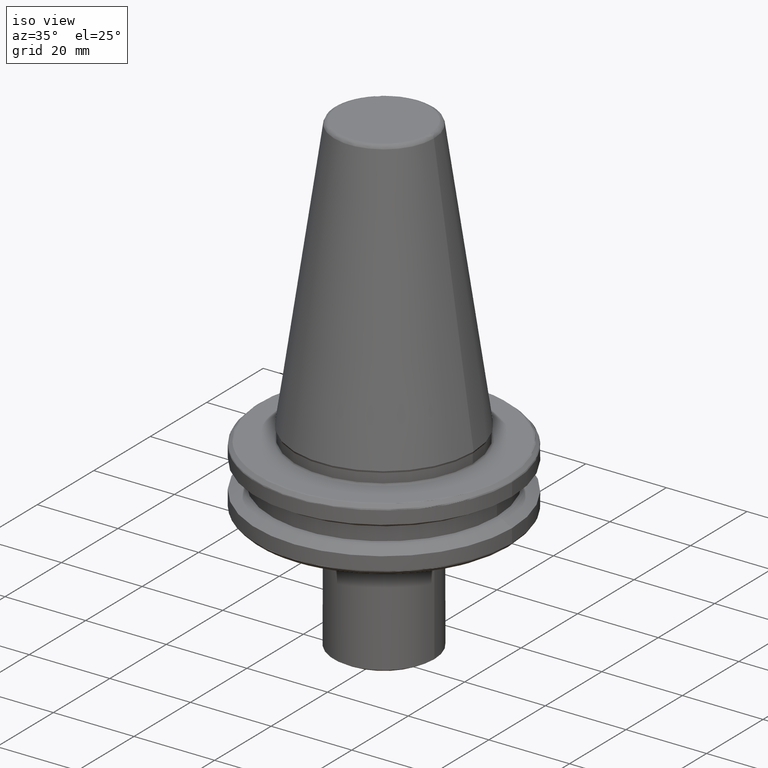
[diagram: clean part render]
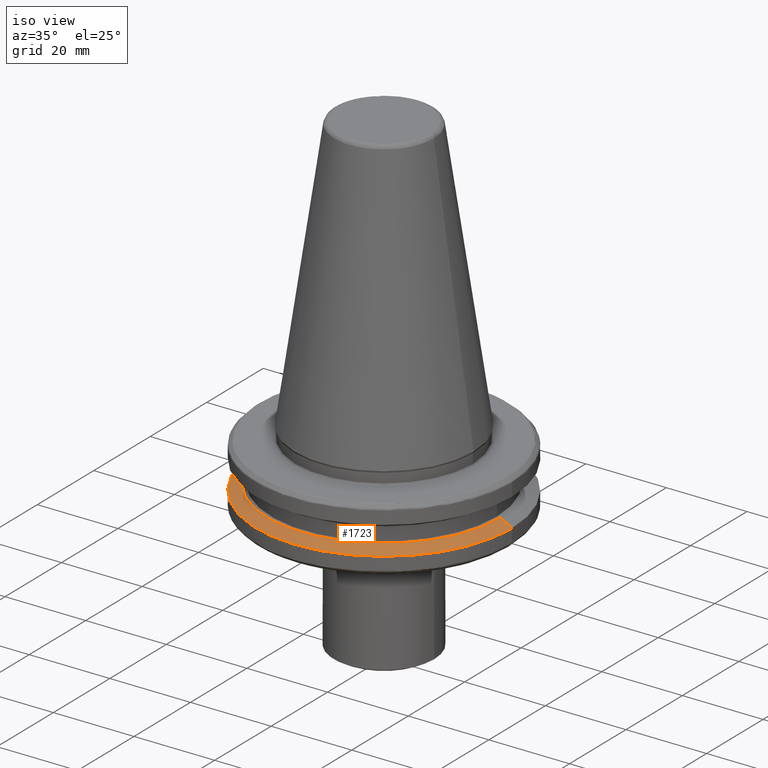
[diagram: same view with one face highlighted and labeled with its STEP entity id]
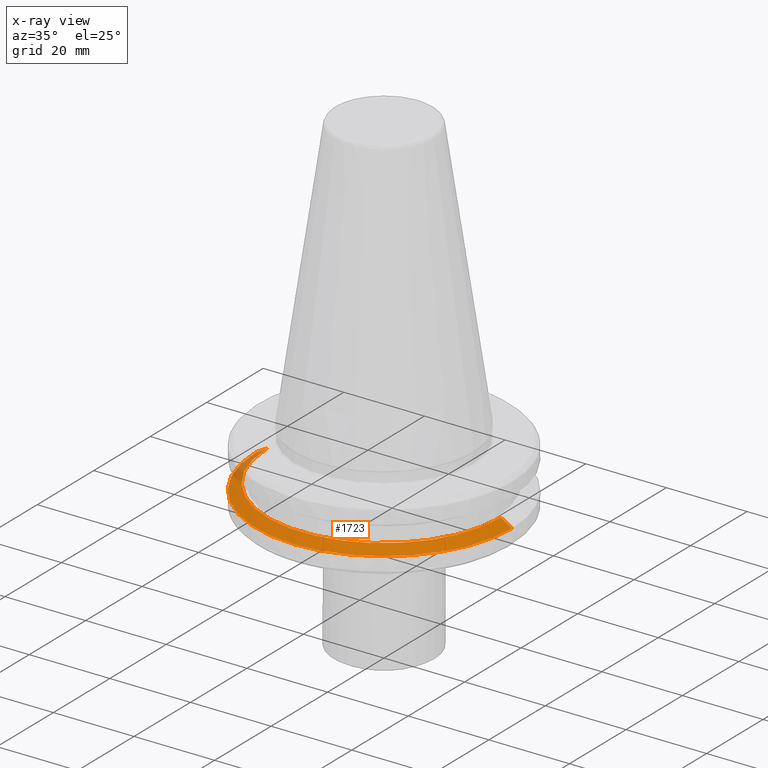
[diagram: x-ray of the same camera — body ghosted, the highlighted face saturated]
A machine part, iso view. The second image highlights one B-rep face of the part: STEP entity #1723.
The next image is the same camera in x-ray: the body ghosted, the highlighted face saturated — about 5% of this face is hidden behind the body in this view.
In plain terms, the highlighted conical surface has half-angle 60 deg.
Its self-contained STEP definition (entity closure, byte-faithful):
#21 = ORIENTED_EDGE ( 'NONE', *, *, #824, .F. ) ;
#230 = AXIS2_PLACEMENT_3D ( 'NONE', #1633, #1790, #2057 ) ;
#252 = DIRECTION ( 'NONE',  ( -1.000000000000000000, 0.0000000000000000000, 0.0000000000000000000 ) ) ;
#330 = CARTESIAN_POINT ( 'NONE',  ( 31.75000000000000700, 3.888253587292847300E-015, -14.62183664205671500 ) ) ;
#433 = VERTEX_POINT ( 'NONE', #1038 ) ;
#753 = AXIS2_PLACEMENT_3D ( 'NONE', #2188, #1719, #1279 ) ;
#770 = LINE ( 'NONE', #330, #2997 ) ;
#824 = EDGE_CURVE ( 'NONE', #433, #1993, #770, .T. ) ;
#901 = VECTOR ( 'NONE', #2010, 1000.000000000000000 ) ;
#981 = CARTESIAN_POINT ( 'NONE',  ( -31.75000000000000700, 0.0000000000000000000, -14.62183664205671500 ) ) ;
#1038 = CARTESIAN_POINT ( 'NONE',  ( 28.94089653438085100, 3.716245608910634800E-015, -13.00000000000000000 ) ) ;
#1155 = CIRCLE ( 'NONE', #230, 28.94089653438085100 ) ;
#1279 = DIRECTION ( 'NONE',  ( -1.000000000000000000, 0.0000000000000000000, 0.0000000000000000000 ) ) ;
#1316 = EDGE_LOOP ( 'NONE', ( #21, #2646, #1532, #2888 ) ) ;
#1377 = FACE_OUTER_BOUND ( 'NONE', #1316, .T. ) ;
#1408 = LINE ( 'NONE', #981, #901 ) ;
#1477 = CARTESIAN_POINT ( 'NONE',  ( 0.0000000000000000000, 0.0000000000000000000, -14.62183664205671200 ) ) ;
#1532 = ORIENTED_EDGE ( 'NONE', *, *, #1724, .T. ) ;
#1633 = CARTESIAN_POINT ( 'NONE',  ( 0.0000000000000000000, 0.0000000000000000000, -13.00000000000000000 ) ) ;
#1719 = DIRECTION ( 'NONE',  ( 0.0000000000000000000, 0.0000000000000000000, -1.000000000000000000 ) ) ;
#1723 = ADVANCED_FACE ( 'NONE', ( #1377 ), #2978, .T. ) ;
#1724 = EDGE_CURVE ( 'NONE', #2495, #1983, #1408, .T. ) ;
#1790 = DIRECTION ( 'NONE',  ( 0.0000000000000000000, 0.0000000000000000000, -1.000000000000000000 ) ) ;
#1863 = EDGE_CURVE ( 'NONE', #1983, #1993, #1910, .T. ) ;
#1895 = CARTESIAN_POINT ( 'NONE',  ( -31.75000000000000000, 3.888253587292846500E-015, -14.62183664205671200 ) ) ;
#1910 = CIRCLE ( 'NONE', #2803, 31.75000000000000000 ) ;
#1983 = VERTEX_POINT ( 'NONE', #1895 ) ;
#1993 = VERTEX_POINT ( 'NONE', #3006 ) ;
#2010 = DIRECTION ( 'NONE',  ( -0.8660254037844403700, 0.0000000000000000000, -0.4999999999999970000 ) ) ;
#2057 = DIRECTION ( 'NONE',  ( -1.000000000000000000, 0.0000000000000000000, 0.0000000000000000000 ) ) ;
#2100 = CARTESIAN_POINT ( 'NONE',  ( -28.94089653438085100, 0.0000000000000000000, -13.00000000000000000 ) ) ;
#2188 = CARTESIAN_POINT ( 'NONE',  ( 0.0000000000000000000, 0.0000000000000000000, -14.62183664205671500 ) ) ;
#2495 = VERTEX_POINT ( 'NONE', #2100 ) ;
#2646 = ORIENTED_EDGE ( 'NONE', *, *, #2658, .T. ) ;
#2658 = EDGE_CURVE ( 'NONE', #433, #2495, #1155, .T. ) ;
#2683 = DIRECTION ( 'NONE',  ( 0.8660254037844403700, 1.060575238724909000E-016, -0.4999999999999970000 ) ) ;
#2803 = AXIS2_PLACEMENT_3D ( 'NONE', #1477, #2944, #252 ) ;
#2888 = ORIENTED_EDGE ( 'NONE', *, *, #1863, .T. ) ;
#2944 = DIRECTION ( 'NONE',  ( -0.0000000000000000000, -0.0000000000000000000, 1.000000000000000000 ) ) ;
#2978 = CONICAL_SURFACE ( 'NONE', #753, 31.75000000000000700, 1.047197551196601200 ) ;
#2997 = VECTOR ( 'NONE', #2683, 1000.000000000000000 ) ;
#3006 = CARTESIAN_POINT ( 'NONE',  ( 31.75000000000000000, 0.0000000000000000000, -14.62183664205671200 ) ) ;